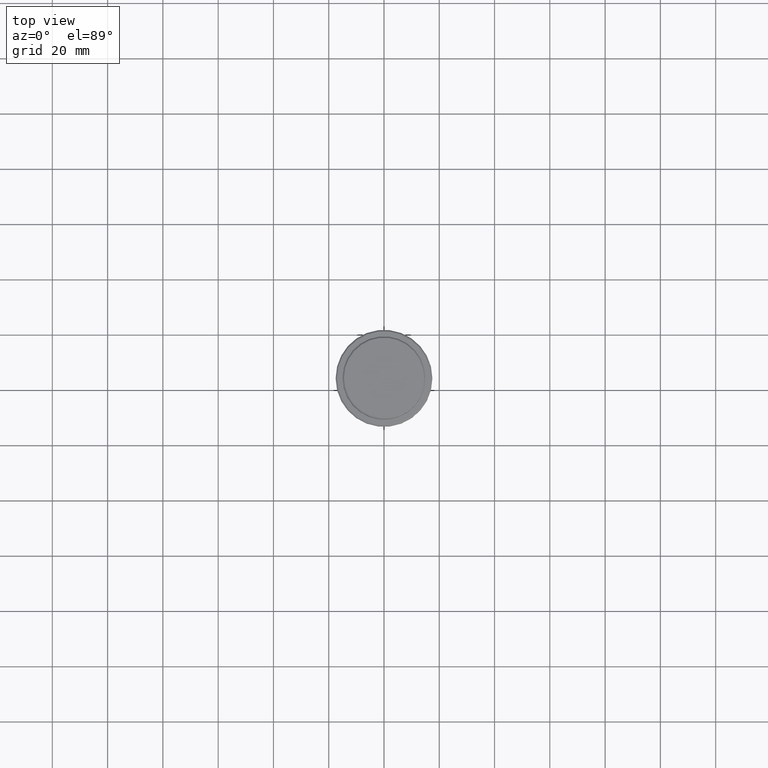
[diagram: clean part render]
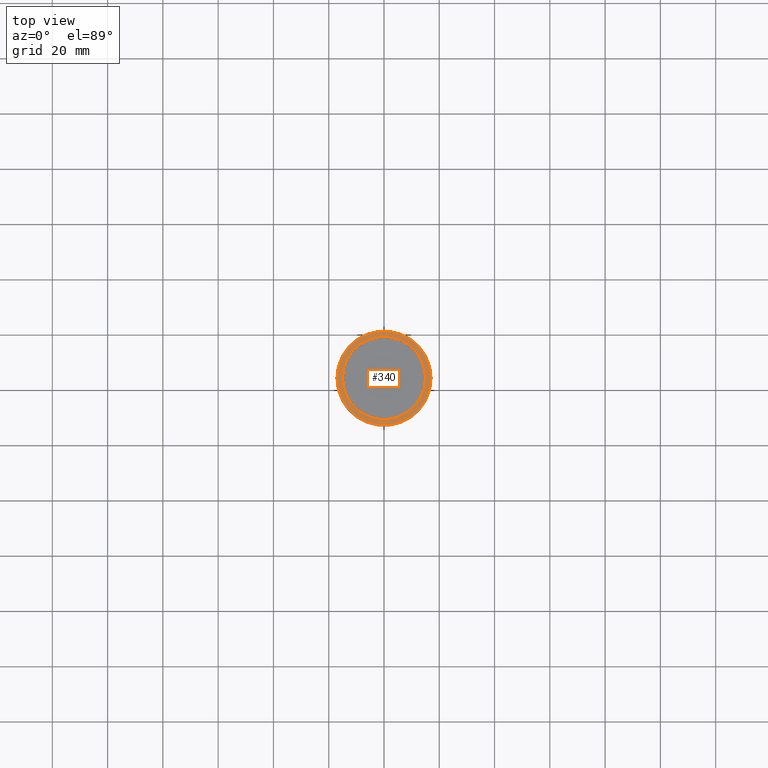
[diagram: same view with one face highlighted and labeled with its STEP entity id]
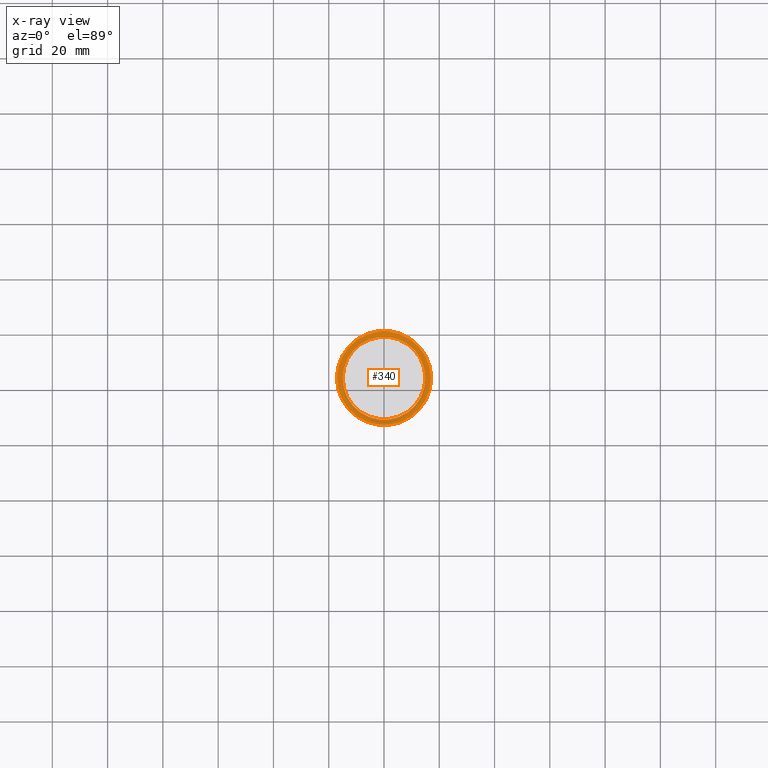
[diagram: x-ray of the same camera — body ghosted, the highlighted face saturated]
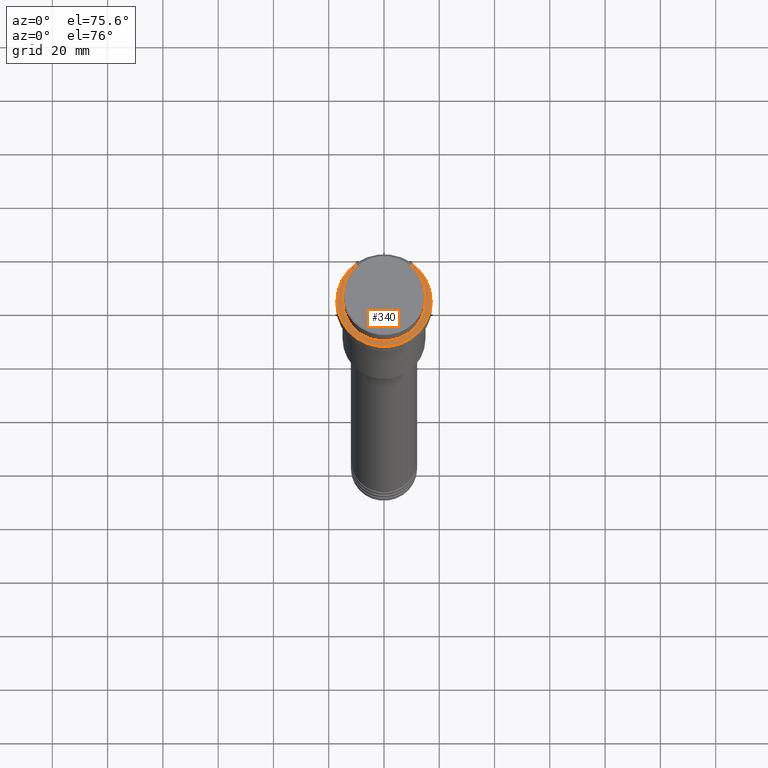
[diagram: same view with one face highlighted and labeled with its STEP entity id]
A machine part, top view. The second image highlights one B-rep face of the part: STEP entity #340.
The next image is the same camera in x-ray: the body ghosted, the highlighted face saturated — about 0% of this face is hidden behind the body in this view.
A second angle (auxiliary view) of the same face is appended — the face is thin or edge-on in the first view.
In plain terms, the highlighted planar face has unit normal (0, -0, 1).
Its self-contained STEP definition (entity closure, byte-faithful):
#13 = DIRECTION ( 'NONE',  ( 1.000000000000000000, 0.000000000000000000, 0.000000000000000000 ) ) ;
#74 = DIRECTION ( 'NONE',  ( 1.000000000000000000, 0.000000000000000000, 0.000000000000000000 ) ) ;
#90 = AXIS2_PLACEMENT_3D ( 'NONE', #1251, #608, #1198 ) ;
#134 = CIRCLE ( 'NONE', #251, 14.99999999999999467 ) ;
#150 = CARTESIAN_POINT ( 'NONE',  ( 0.000000000000000000, 0.000000000000000000, -9.000000000000001776 ) ) ;
#160 = AXIS2_PLACEMENT_3D ( 'NONE', #150, #819, #695 ) ;
#169 = EDGE_CURVE ( 'NONE', #595, #906, #232, .T. ) ;
#176 = ORIENTED_EDGE ( 'NONE', *, *, #169, .T. ) ;
#189 = AXIS2_PLACEMENT_3D ( 'NONE', #1293, #398, #74 ) ;
#194 = CARTESIAN_POINT ( 'NONE',  ( 0.000000000000000000, 0.000000000000000000, -9.000000000000001776 ) ) ;
#232 = CIRCLE ( 'NONE', #1369, 17.00000000000001421 ) ;
#245 = CARTESIAN_POINT ( 'NONE',  ( 17.00000000000001421, 2.112515728529185250E-15, -9.000000000000001776 ) ) ;
#251 = AXIS2_PLACEMENT_3D ( 'NONE', #1346, #589, #13 ) ;
#306 = CARTESIAN_POINT ( 'NONE',  ( 14.99999999999999467, 0.000000000000000000, -9.000000000000001776 ) ) ;
#340 = ADVANCED_FACE ( 'NONE', ( #963, #408 ), #1279, .T. ) ;
#398 = DIRECTION ( 'NONE',  ( 0.000000000000000000, -0.000000000000000000, 1.000000000000000000 ) ) ;
#400 = CIRCLE ( 'NONE', #160, 14.99999999999999467 ) ;
#408 = FACE_BOUND ( 'NONE', #1382, .T. ) ;
#576 = EDGE_LOOP ( 'NONE', ( #798, #176 ) ) ;
#589 = DIRECTION ( 'NONE',  ( 0.000000000000000000, 0.000000000000000000, -1.000000000000000000 ) ) ;
#595 = VERTEX_POINT ( 'NONE', #245 ) ;
#608 = DIRECTION ( 'NONE',  ( -0.000000000000000000, -0.000000000000000000, 1.000000000000000000 ) ) ;
#675 = VERTEX_POINT ( 'NONE', #1064 ) ;
#695 = DIRECTION ( 'NONE',  ( 1.000000000000000000, 0.000000000000000000, 0.000000000000000000 ) ) ;
#763 = CARTESIAN_POINT ( 'NONE',  ( -17.00000000000001421, 0.000000000000000000, -9.000000000000001776 ) ) ;
#798 = ORIENTED_EDGE ( 'NONE', *, *, #1039, .T. ) ;
#819 = DIRECTION ( 'NONE',  ( 0.000000000000000000, 0.000000000000000000, -1.000000000000000000 ) ) ;
#826 = ORIENTED_EDGE ( 'NONE', *, *, #1193, .T. ) ;
#906 = VERTEX_POINT ( 'NONE', #763 ) ;
#935 = EDGE_CURVE ( 'NONE', #968, #675, #400, .T. ) ;
#963 = FACE_OUTER_BOUND ( 'NONE', #576, .T. ) ;
#968 = VERTEX_POINT ( 'NONE', #306 ) ;
#1039 = EDGE_CURVE ( 'NONE', #906, #595, #1091, .T. ) ;
#1064 = CARTESIAN_POINT ( 'NONE',  ( -14.99999999999999467, 1.836970198721029194E-15, -9.000000000000001776 ) ) ;
#1091 = CIRCLE ( 'NONE', #90, 17.00000000000001421 ) ;
#1193 = EDGE_CURVE ( 'NONE', #675, #968, #134, .T. ) ;
#1198 = DIRECTION ( 'NONE',  ( 1.000000000000000000, 0.000000000000000000, 0.000000000000000000 ) ) ;
#1235 = ORIENTED_EDGE ( 'NONE', *, *, #935, .T. ) ;
#1251 = CARTESIAN_POINT ( 'NONE',  ( 0.000000000000000000, 0.000000000000000000, -9.000000000000001776 ) ) ;
#1279 = PLANE ( 'NONE',  #189 ) ;
#1293 = CARTESIAN_POINT ( 'NONE',  ( 0.000000000000000000, 14.49999999999999467, -9.000000000000001776 ) ) ;
#1346 = CARTESIAN_POINT ( 'NONE',  ( 0.000000000000000000, 0.000000000000000000, -9.000000000000001776 ) ) ;
#1363 = DIRECTION ( 'NONE',  ( 1.000000000000000000, 0.000000000000000000, 0.000000000000000000 ) ) ;
#1369 = AXIS2_PLACEMENT_3D ( 'NONE', #194, #1377, #1363 ) ;
#1377 = DIRECTION ( 'NONE',  ( -0.000000000000000000, -0.000000000000000000, 1.000000000000000000 ) ) ;
#1382 = EDGE_LOOP ( 'NONE', ( #1235, #826 ) ) ;